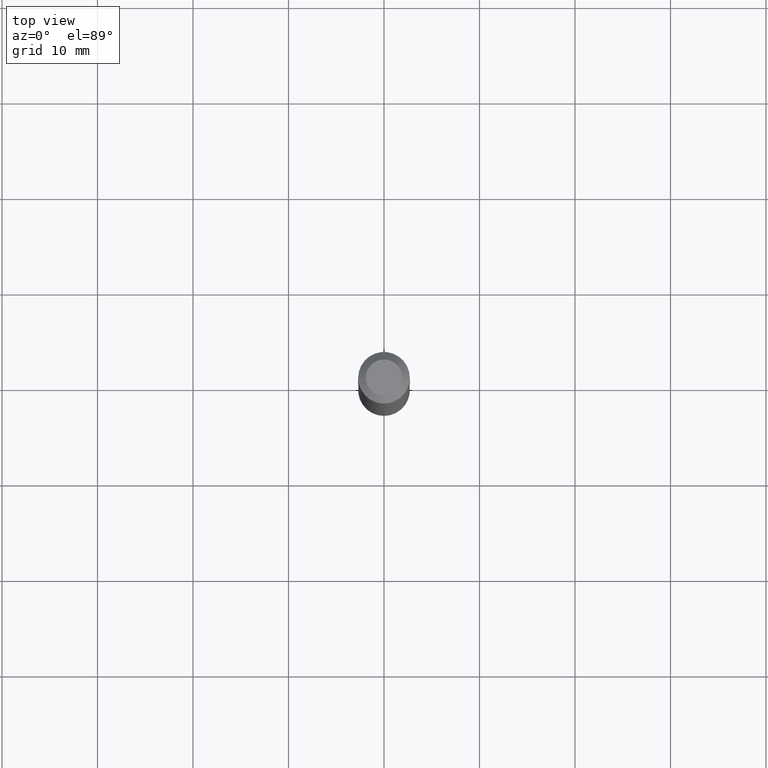
[diagram: clean part render]
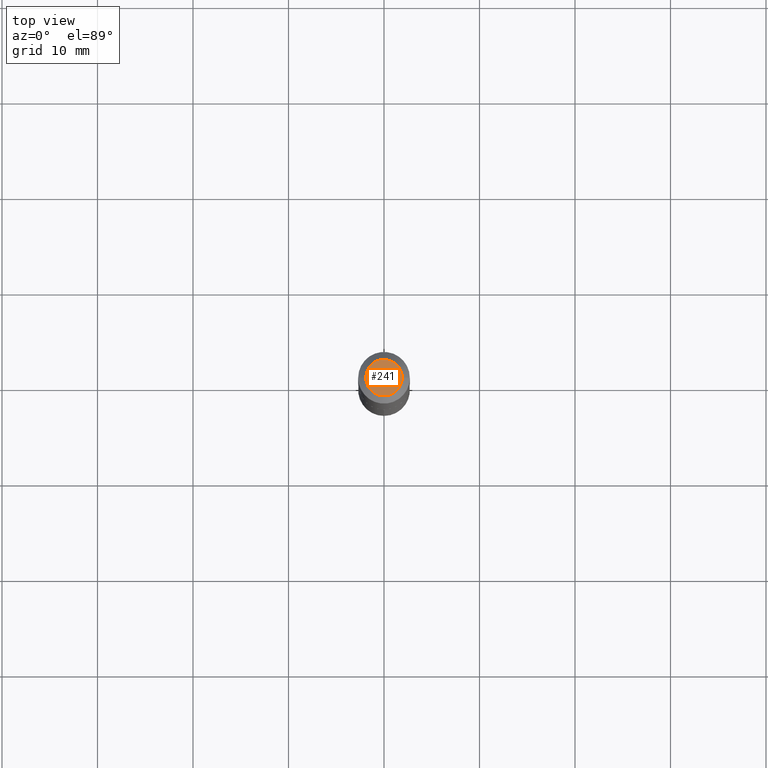
[diagram: same view with one face highlighted and labeled with its STEP entity id]
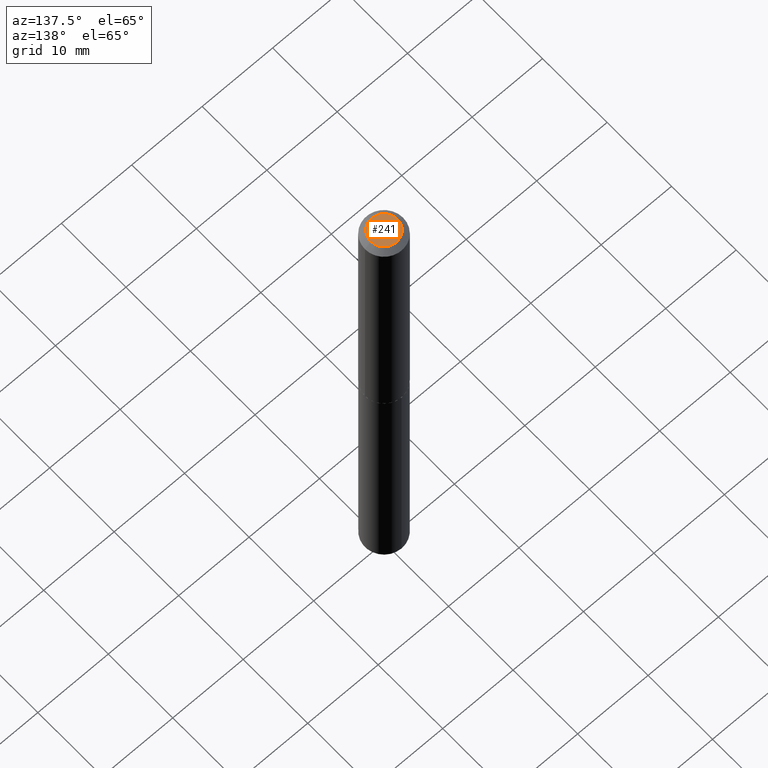
[diagram: same view with one face highlighted and labeled with its STEP entity id]
A machine part, top view. The second image highlights one B-rep face of the part: STEP entity #241.
A second angle (auxiliary view) of the same face is appended — the face is thin or edge-on in the first view.
In plain terms, the highlighted planar face has unit normal (0, -0, -1).
Its self-contained STEP definition (entity closure, byte-faithful):
#13 = AXIS2_PLACEMENT_3D ( 'NONE', #278, #285, #47 ) ;
#20 = EDGE_LOOP ( 'NONE', ( #73, #192 ) ) ;
#47 = DIRECTION ( 'NONE',  ( 1.000000000000000000, -6.982962677686265922E-15, 4.876211453340348118E-29 ) ) ;
#73 = ORIENTED_EDGE ( 'NONE', *, *, #293, .T. ) ;
#108 = CARTESIAN_POINT ( 'NONE',  ( 5.989671091818683705E-48, -8.551662891793989687E-34, -2.449293598294718806E-19 ) ) ;
#139 = CIRCLE ( 'NONE', #13, 0.07524999999999999745 ) ;
#158 = CIRCLE ( 'NONE', #342, 0.07524999999999999745 ) ;
#192 = ORIENTED_EDGE ( 'NONE', *, *, #209, .T. ) ;
#195 = DIRECTION ( 'NONE',  ( -1.000000000000000000, 6.982962677686265922E-15, -4.876176775795935793E-29 ) ) ;
#204 = VERTEX_POINT ( 'NONE', #227 ) ;
#209 = EDGE_CURVE ( 'NONE', #222, #204, #139, .T. ) ;
#211 = AXIS2_PLACEMENT_3D ( 'NONE', #108, #221, #195 ) ;
#221 = DIRECTION ( 'NONE',  ( 2.438088387897960049E-29, -3.491481338843145188E-15, -1.000000000000000000 ) ) ;
#222 = VERTEX_POINT ( 'NONE', #310 ) ;
#227 = CARTESIAN_POINT ( 'NONE',  ( -0.07524999999999999745, 5.800223374153149725E-16, -4.898587196628091026E-19 ) ) ;
#236 = DIRECTION ( 'NONE',  ( 1.000000000000000000, -6.982962677686265922E-15, 4.876211453340348118E-29 ) ) ;
#241 = ADVANCED_FACE ( 'NONE', ( #379 ), #380, .F. ) ;
#278 = CARTESIAN_POINT ( 'NONE',  ( 1.197934218363736741E-47, -1.710332578358797937E-33, -4.898587196589437612E-19 ) ) ;
#285 = DIRECTION ( 'NONE',  ( -2.445468806185136597E-29, 3.491481338843145583E-15, 1.000000000000000000 ) ) ;
#290 = DIRECTION ( 'NONE',  ( -2.445468806185136597E-29, 3.491481338843145583E-15, 1.000000000000000000 ) ) ;
#293 = EDGE_CURVE ( 'NONE', #204, #222, #158, .T. ) ;
#310 = CARTESIAN_POINT ( 'NONE',  ( 0.07524999999999999745, -6.780021514669123730E-16, -4.898587196547362783E-19 ) ) ;
#321 = CARTESIAN_POINT ( 'NONE',  ( 1.197934218363736741E-47, -1.710332578358797937E-33, -4.898587196589437612E-19 ) ) ;
#342 = AXIS2_PLACEMENT_3D ( 'NONE', #321, #290, #236 ) ;
#379 = FACE_OUTER_BOUND ( 'NONE', #20, .T. ) ;
#380 = PLANE ( 'NONE',  #211 ) ;